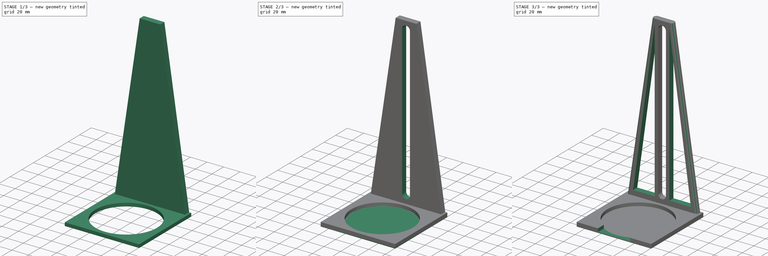
[diagram: build sequence overview — one tinted view per stage of 3, left to right]
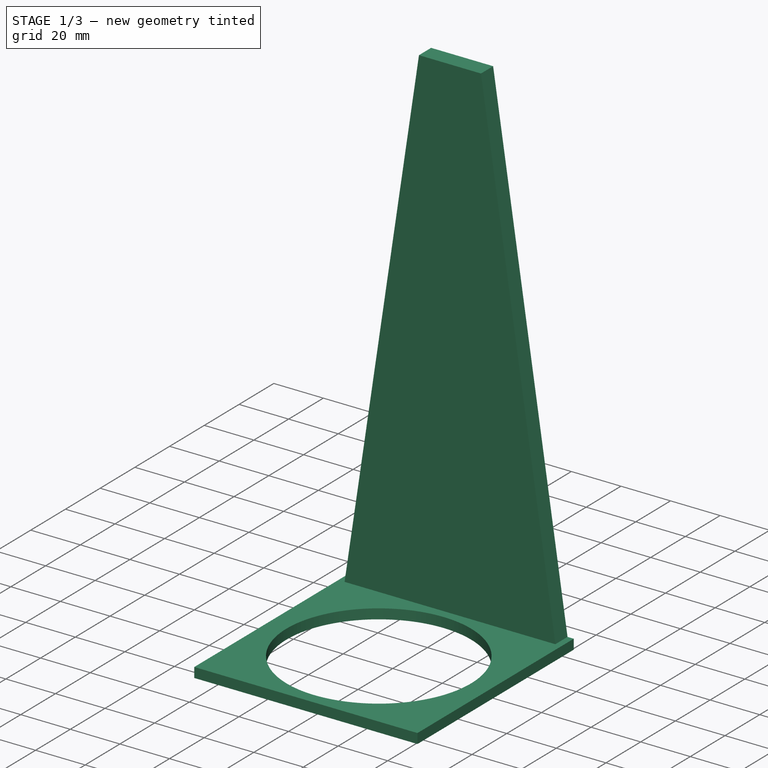
[diagram: stage 1 of 3 — iso view after this stage's code; geometry added in this stage tinted green]
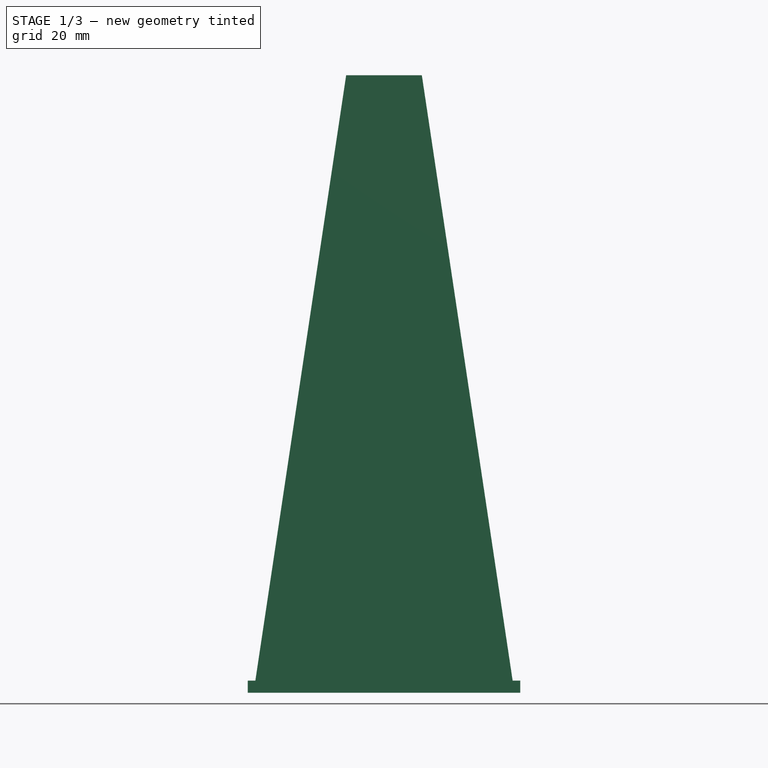
[diagram: stage 1 of 3 — front view after this stage's code; geometry added in this stage tinted green]
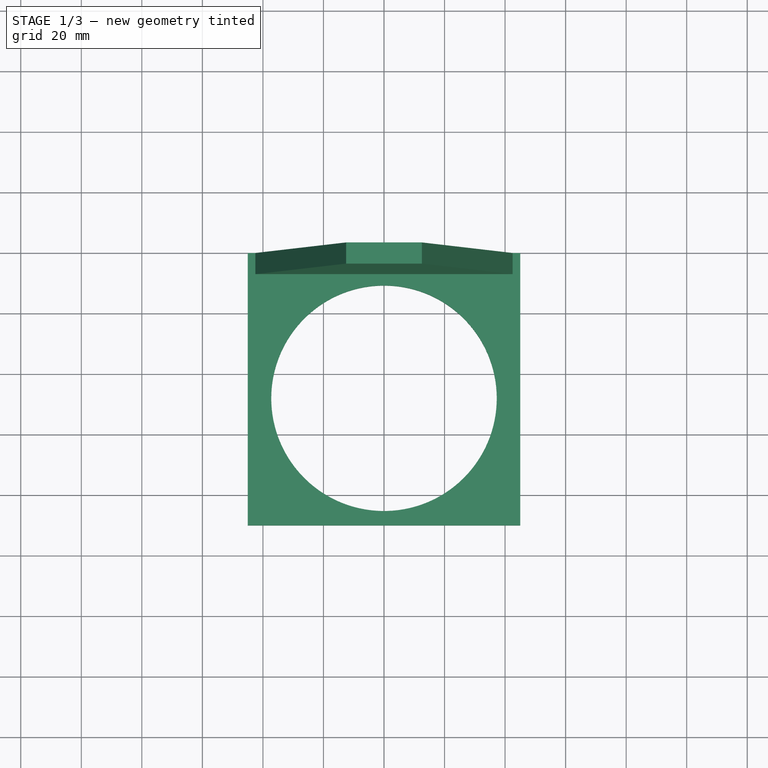
[diagram: stage 1 of 3 — top view after this stage's code; geometry added in this stage tinted green]
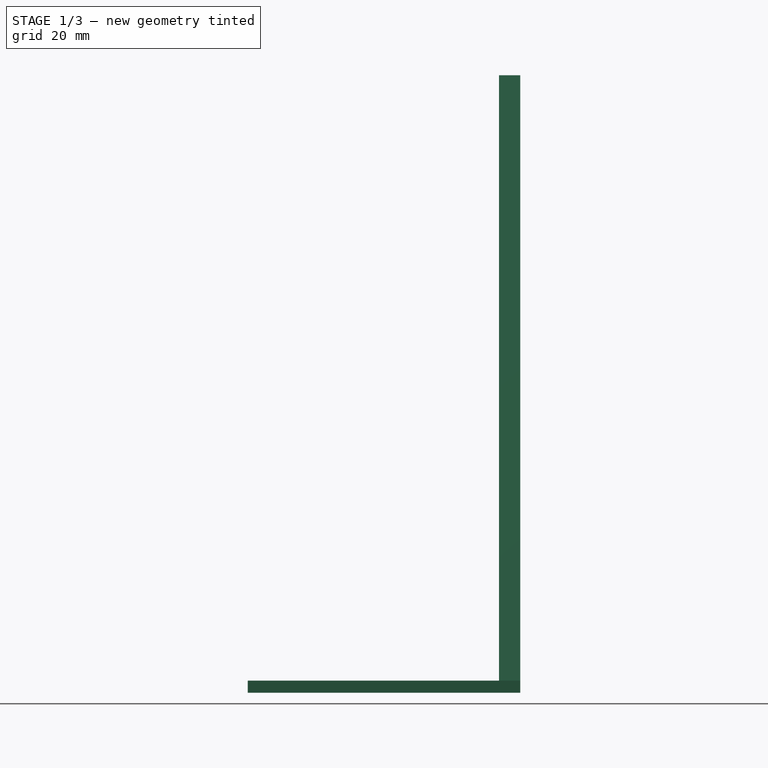
[diagram: stage 1 of 3 — right view after this stage's code; geometry added in this stage tinted green]
FCSTD DOCUMENT  (FreeCAD 0.21R33771 (Git))
Label: densimetro corpo
License: All rights reserved
LicenseURL: https://en.wikipedia.org/wiki/All_rights_reserved
objects: Sketcher::SketchObject×7, PartDesign::Pocket×4, PartDesign::Pad×3, PartDesign::Fillet×2, PartDesign::Body×1
note: 26 computed .brp shape members not serialized (recipe doc carries the construction recipe); baked Part::Feature solids carry a one-line shape summary decoded from their .brp

FEATURE [Sketcher::SketchObject] Sketch
  FullyConstrained = true
  MapMode = 5
  Placement = pos=(0,0,0) rot=(1,0,0;1.5708rad)
  Support = -> [XZ_Plane]
  sketch-geometry (8):
    g0: LineSegment StartX=-12.5 StartY=100 StartZ=0 EndX=-42.5 EndY=-100 EndZ=0
    g1: LineSegment StartX=-12.5 StartY=100 StartZ=0 EndX=12.5 EndY=100 EndZ=0
    g2: LineSegment StartX=12.5 StartY=100 StartZ=0 EndX=42.5 EndY=-100 EndZ=0
    g3: LineSegment StartX=-12.5 StartY=-100 StartZ=0 EndX=12.5 EndY=-100 EndZ=0
    g4: LineSegment StartX=-12.5 StartY=100 StartZ=0 EndX=-12.5 EndY=-100 EndZ=0
    g5: LineSegment StartX=12.5 StartY=100 StartZ=0 EndX=12.5 EndY=-100 EndZ=0
    g6: LineSegment StartX=-42.5 StartY=-100 StartZ=0 EndX=-12.5 EndY=-100 EndZ=0
    g7: LineSegment StartX=12.5 StartY=-100 StartZ=0 EndX=42.5 EndY=-100 EndZ=0
  constraints (21):
    c: Horizontal(g1)
    c: Horizontal(g3)
    c: Vertical(g5)
    c: Vertical(g4)
    c: Coincident(g4,g1)
    c: Coincident(g5,g1)
    c: Coincident(g3,g4)
    c: Coincident(g5,g3)
    c: DistanceY(g5,g5) = 200
    c: Symmetric(g3,g1,g-1)
    c: Coincident(g0,g1)
    c: Coincident(g2,g1)
    c: DistanceX(g1,g1) = 25
    c: Horizontal(g6)
    c: Horizontal(g7)
    c: Coincident(g7,g3)
    c: Coincident(g7,g2)
    c: Coincident(g6,g0)
    c: Coincident(g6,g3)
    c: DistanceX(g6,g6) = 30
    c: Equal(g6,g7)
FEATURE [PartDesign::Pad] Pad
  Direction = (0,-1,2e-16)
  Length = 7
  Length2 = 10
  Placement = pos=(0,0,0) rot=(1,0,0;1.5708rad)
  Profile = -> Sketch
  ReferenceAxis = -> Sketch [N_Axis]
  Type = 0
FEATURE [Sketcher::SketchObject] Sketch001
  FullyConstrained = true
  MapMode = 5
  Placement = pos=(0,-2.22e-14,-100) rot=(1,0,0;3.14159rad)
  Support = -> [Pad]
  sketch-geometry (4):
    g0: LineSegment StartX=-45 StartY=90 StartZ=0 EndX=45 EndY=90 EndZ=0
    g1: LineSegment StartX=45 StartY=90 StartZ=0 EndX=45 EndY=0 EndZ=0
    g2: LineSegment StartX=45 StartY=0 StartZ=0 EndX=-45 EndY=0 EndZ=0
    g3: LineSegment StartX=-45 StartY=0 StartZ=0 EndX=-45 EndY=90 EndZ=0
  constraints (11):
    c: Coincident(g0,g1)
    c: Coincident(g1,g2)
    c: Coincident(g2,g3)
    c: Coincident(g3,g0)
    c: Horizontal(g0)
    c: Horizontal(g2)
    c: Vertical(g1)
    c: Vertical(g3)
    c: Symmetric(g2,g1,g-1)
    c: DistanceX(g2,g2) = 90
    c: DistanceY(g1,g1) = 90
FEATURE [PartDesign::Pad] Pad001
  BaseFeature = -> Pad
  Direction = (0,-2e-16,-1)
  Length = 4
  Length2 = 10
  Placement = pos=(0,0,0) rot=(1,0,0;1.5708rad)
  Profile = -> Sketch001
  ReferenceAxis = -> Sketch001 [N_Axis]
  Type = 0
FEATURE [Sketcher::SketchObject] Sketch002
  FullyConstrained = true
  MapMode = 5
  Placement = pos=(0,-1.64e-14,-104) rot=(1,0,0;3.14159rad)
  Support = -> [Pad001]
  sketch-geometry (1):
    g0: Circle CenterX=0 CenterY=48 CenterZ=0 NormalX=0 NormalY=0 NormalZ=1 AngleXU=0 Radius=37.25
  constraints (3):
    c: PointOnObject(g0,g-2)
    c: Diameter(g0) = 74.5
    c: DistanceY(g-1,g0) = 48
FEATURE [PartDesign::Pocket] Pocket
  BaseFeature = -> Pad001
  Direction = (0,2e-16,1)
  Length = 5
  Length2 = 5
  Placement = pos=(0,0,0) rot=(1,0,0;1.5708rad)
  Profile = -> Sketch002
  ReferenceAxis = -> Sketch002 [N_Axis]
  Type = 0
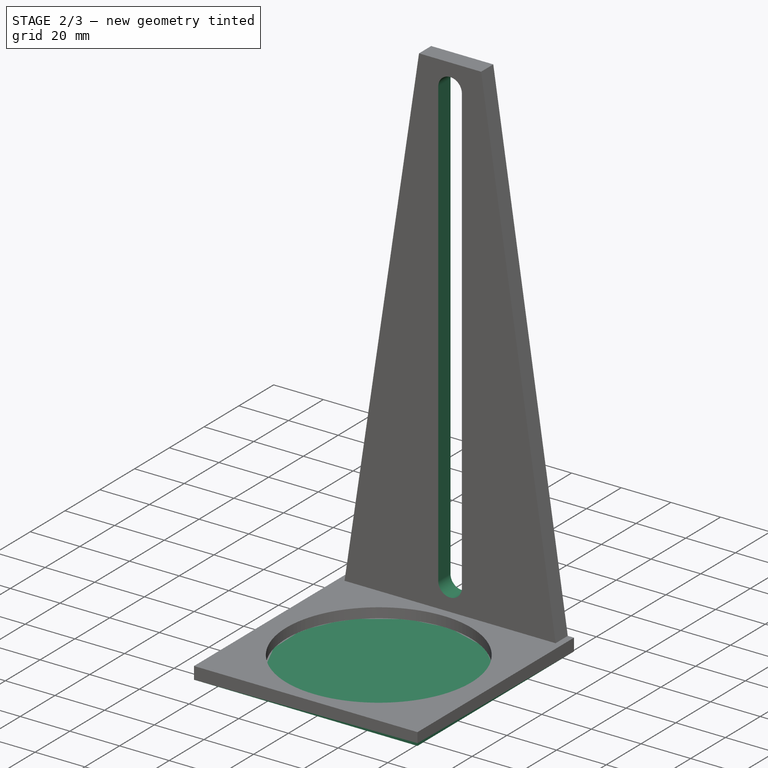
[diagram: stage 2 of 3 — iso view after this stage's code; geometry added in this stage tinted green]
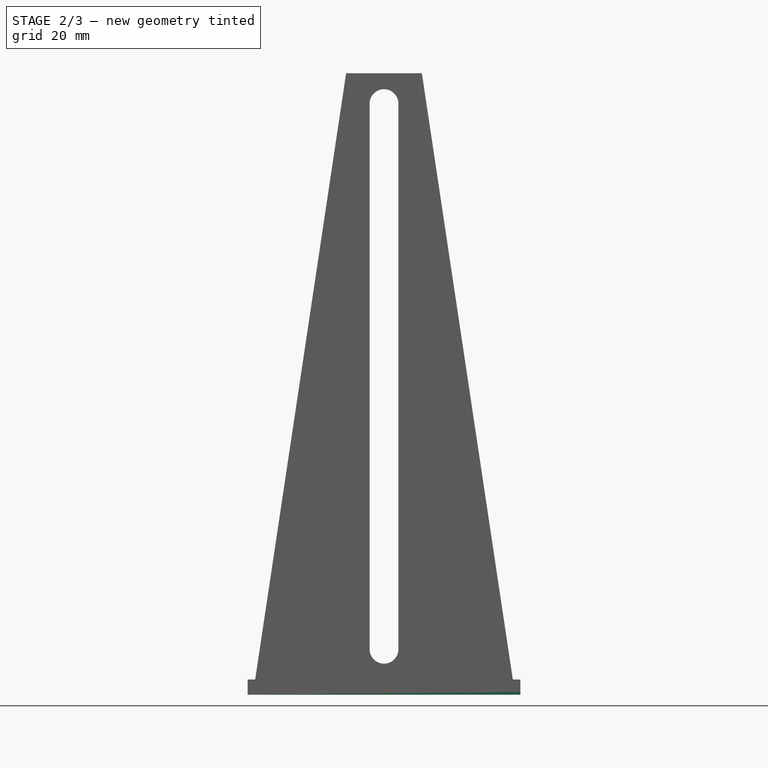
[diagram: stage 2 of 3 — front view after this stage's code; geometry added in this stage tinted green]
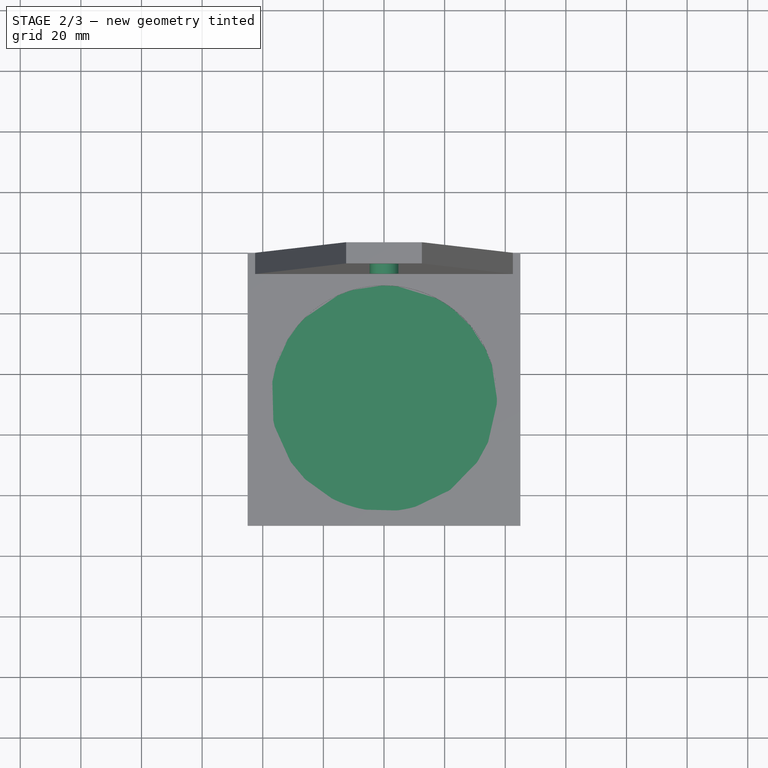
[diagram: stage 2 of 3 — top view after this stage's code; geometry added in this stage tinted green]
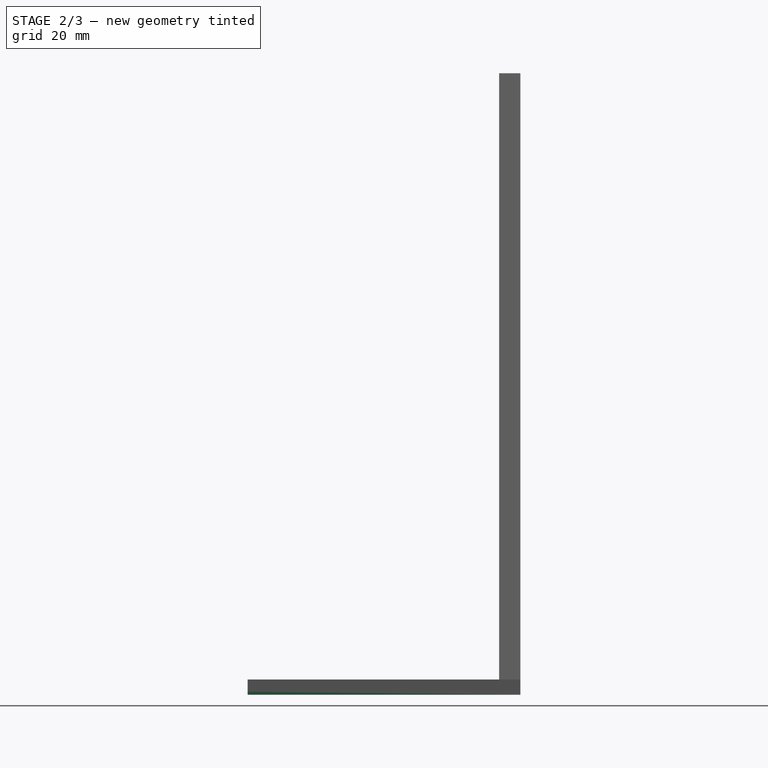
[diagram: stage 2 of 3 — right view after this stage's code; geometry added in this stage tinted green]
FEATURE [Sketcher::SketchObject] Sketch003
  FullyConstrained = true
  MapMode = 5
  Placement = pos=(0,-1.64e-14,-104) rot=(1,0,0;3.14159rad)
  Support = -> [Pocket]
  sketch-geometry (4):
    g0: LineSegment StartX=-45 StartY=90 StartZ=0 EndX=45 EndY=90 EndZ=0
    g1: LineSegment StartX=45 StartY=90 StartZ=0 EndX=45 EndY=0 EndZ=0
    g2: LineSegment StartX=45 StartY=-4e-16 StartZ=0 EndX=-45 EndY=-4e-16 EndZ=0
    g3: LineSegment StartX=-45 StartY=-4e-16 StartZ=0 EndX=-45 EndY=90 EndZ=0
  constraints (11):
    c: Coincident(g0,g1)
    c: Coincident(g1,g2)
    c: Coincident(g2,g3)
    c: Coincident(g3,g0)
    c: Horizontal(g0)
    c: Horizontal(g2)
    c: Vertical(g1)
    c: Vertical(g3)
    c: DistanceX(g0,g0) = 90
    c: DistanceY(g1,g1) = 90
    c: Symmetric(g2,g1,g-1)
FEATURE [PartDesign::Pad] Pad002
  BaseFeature = -> Pocket
  Direction = (0,-2e-16,-1)
  Length = 1
  Length2 = 10
  Placement = pos=(0,0,0) rot=(1,0,0;1.5708rad)
  Profile = -> Sketch003
  ReferenceAxis = -> Sketch003 [N_Axis]
  Type = 0
FEATURE [Sketcher::SketchObject] Sketch004
  FullyConstrained = true
  MapMode = 5
  Placement = pos=(0,-7,1.6e-15) rot=(1,0,0;1.5708rad)
  Support = -> [Pad002]
  sketch-geometry (4):
    g0: ArcOfCircle CenterX=4e-16 CenterY=90 CenterZ=0 NormalX=0 NormalY=0 NormalZ=1 AngleXU=0 Radius=4.75 StartAngle=5e-16 EndAngle=3.14159
    g1: ArcOfCircle CenterX=-4e-16 CenterY=-90 CenterZ=0 NormalX=0 NormalY=0 NormalZ=1 AngleXU=0 Radius=4.75 StartAngle=3.14159 EndAngle=6.28319
    g2: LineSegment StartX=-4.75 StartY=90 StartZ=0 EndX=-4.75 EndY=-90 EndZ=0
    g3: LineSegment StartX=4.75 StartY=-90 StartZ=0 EndX=4.75 EndY=90 EndZ=0
  constraints (9):
    c: Tangent(g0,g2) = -1.5708
    c: Tangent(g2,g1) = -1.5708
    c: Tangent(g1,g3) = -1.5708
    c: Tangent(g3,g0) = -1.5708
    c: Equal(g0,g1)
    c: Vertical(g3)
    c: Symmetric(g0,g1,g-1)
    c: Diameter(g0) = 9.5
    c: DistanceY(g3,g3) = 180
FEATURE [PartDesign::Pocket] Pocket001
  BaseFeature = -> Pad002
  Direction = (0,1,-2e-16)
  Length = 5
  Length2 = 5
  Placement = pos=(0,0,0) rot=(1,0,0;1.5708rad)
  Profile = -> Sketch004
  ReferenceAxis = -> Sketch004 [N_Axis]
  Type = 1
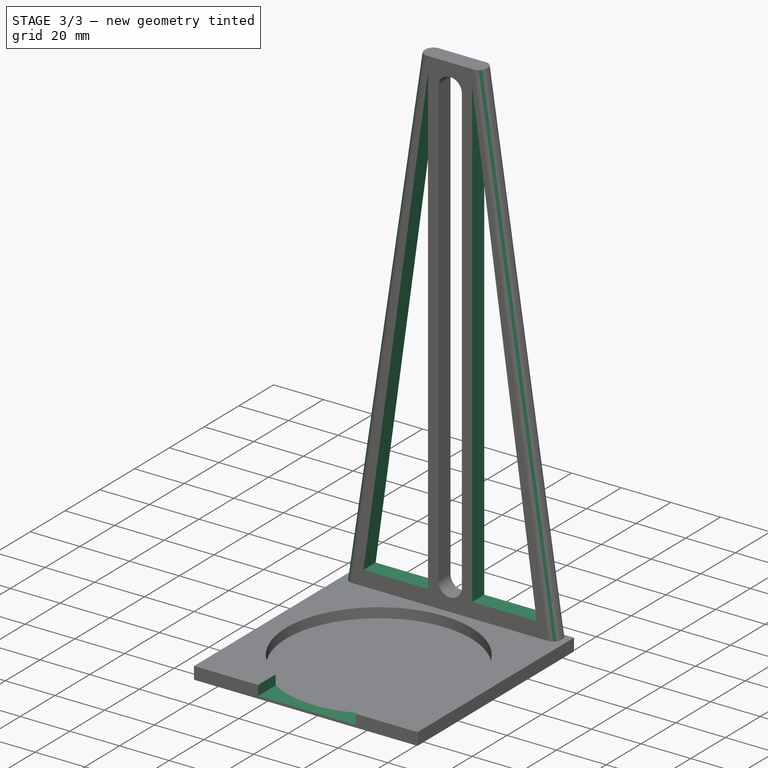
[diagram: stage 3 of 3 — iso view after this stage's code; geometry added in this stage tinted green]
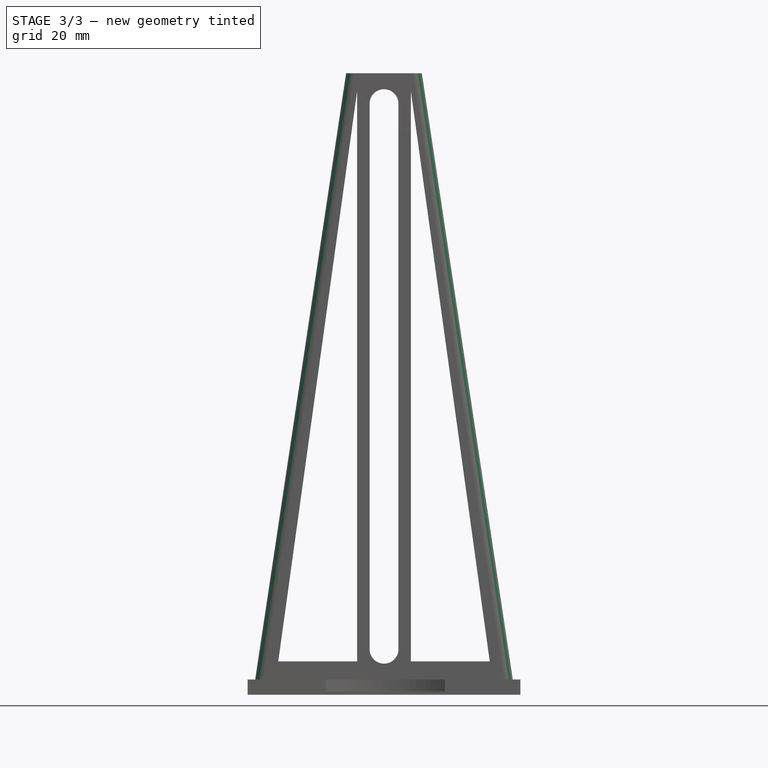
[diagram: stage 3 of 3 — front view after this stage's code; geometry added in this stage tinted green]
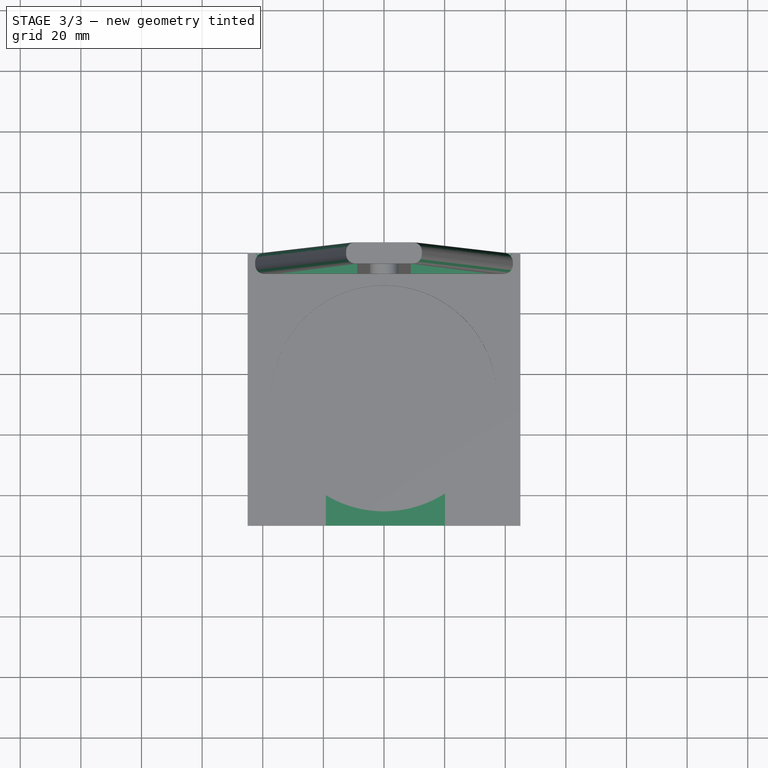
[diagram: stage 3 of 3 — top view after this stage's code; geometry added in this stage tinted green]
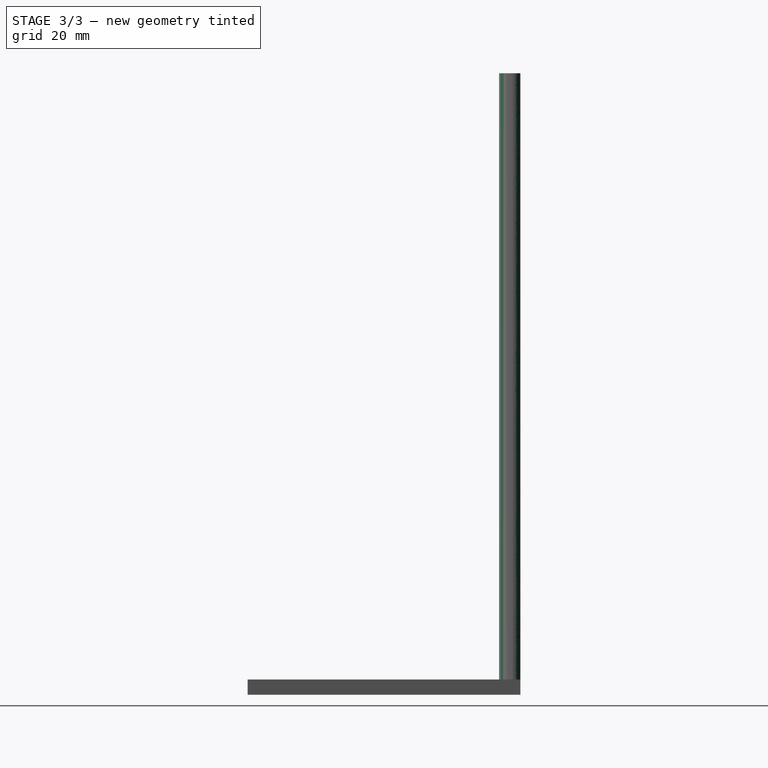
[diagram: stage 3 of 3 — right view after this stage's code; geometry added in this stage tinted green]
FEATURE [Sketcher::SketchObject] Sketch005
  FullyConstrained = true
  MapMode = 5
  Placement = pos=(0,-7,1.6e-15) rot=(1,0,0;1.5708rad)
  Support = -> [Pocket001]
  sketch-geometry (8):
    g0: LineSegment StartX=-34.88 StartY=-94 StartZ=0 EndX=-8.88 EndY=-94 EndZ=0
    g1: LineSegment StartX=-8.88 StartY=-94 StartZ=0 EndX=-8.88 EndY=94 EndZ=0
    g2: LineSegment StartX=-8.88 StartY=94 StartZ=0 EndX=-34.88 EndY=-94 EndZ=0
    g3: Circle CenterX=-21.88 CenterY=0 CenterZ=0 NormalX=0 NormalY=0 NormalZ=1 AngleXU=0 Radius=94.8947
    g4: LineSegment StartX=34.88 StartY=-94 StartZ=0 EndX=8.88 EndY=94 EndZ=0
    g5: LineSegment StartX=8.88 StartY=94 StartZ=0 EndX=8.88 EndY=-94 EndZ=0
    g6: LineSegment StartX=8.88 StartY=-94 StartZ=0 EndX=34.88 EndY=-94 EndZ=0
    g7: Circle CenterX=21.88 CenterY=0 CenterZ=0 NormalX=0 NormalY=0 NormalZ=1 AngleXU=0 Radius=94.8947
  constraints (24):
    c: Coincident(g0,g1)
    c: Coincident(g1,g2)
    c: Coincident(g2,g0)
    c: PointOnObject(g0,g3)
    c: PointOnObject(g1,g3)
    c: PointOnObject(g2,g3)
    c: Horizontal(g0)
    c: Vertical(g1)
    c: DistanceY(g1,g1) = 188
    c: DistanceX(g0,g0) = 26
    c: PointOnObject(g3,g-1)
    c: DistanceX(g3,g-1) = 21.88
    c: Coincident(g4,g5)
    c: Coincident(g5,g6)
    c: Coincident(g6,g4)
    c: PointOnObject(g4,g7)
    c: PointOnObject(g5,g7)
    c: PointOnObject(g6,g7)
    c: Horizontal(g6)
    c: DistanceX(g6,g6) = 26
    c: Vertical(g5)
    c: PointOnObject(g7,g-1)
    c: DistanceX(g-1,g7) = 21.88
    c: DistanceY(g5,g5) = 188
FEATURE [PartDesign::Pocket] Pocket002
  BaseFeature = -> Pocket001
  Direction = (0,1,-2e-16)
  Length = 5
  Length2 = 5
  Placement = pos=(0,0,0) rot=(1,0,0;1.5708rad)
  Profile = -> Sketch005
  ReferenceAxis = -> Sketch005 [N_Axis]
  Type = 1
FEATURE [PartDesign::Fillet] Fillet
  Base = -> Pocket002 [Edge32,Edge31,Edge34,Edge46]
  BaseFeature = -> Pocket002
  Placement = pos=(0,0,0) rot=(1,0,0;1.5708rad)
  Radius = 3
  SupportTransform = false
  UseAllEdges = false
FEATURE [Sketcher::SketchObject] Sketch006
  FullyConstrained = false
  MapMode = 5
  Placement = pos=(0,-1.58e-14,-100) rot=(0,0,1;3.14159rad)
  Support = -> [Fillet]
  sketch-geometry (4):
    g0: LineSegment StartX=-20.1177 StartY=90 StartZ=0 EndX=19.1828 EndY=90 EndZ=0
    g1: LineSegment StartX=19.1828 StartY=90 StartZ=0 EndX=19.1828 EndY=78.8454 EndZ=0
    g2: LineSegment StartX=19.1828 StartY=78.8454 StartZ=0 EndX=-20.1177 EndY=78.8454 EndZ=0
    g3: LineSegment StartX=-20.1177 StartY=78.8454 StartZ=0 EndX=-20.1177 EndY=90 EndZ=0
  constraints (9):
    c: Coincident(g0,g1)
    c: Coincident(g1,g2)
    c: Coincident(g2,g3)
    c: Coincident(g3,g0)
    c: Horizontal(g0)
    c: Horizontal(g2)
    c: Vertical(g1)
    c: Vertical(g3)
    c: DistanceY(g-1,g0) = 90
FEATURE [PartDesign::Pocket] Pocket003
  BaseFeature = -> Fillet
  Direction = (0,-2e-16,-1)
  Length = 4
  Length2 = 5
  Placement = pos=(0,0,0) rot=(1,0,0;1.5708rad)
  Profile = -> Sketch006
  ReferenceAxis = -> Sketch006 [N_Axis]
  Type = 0
FEATURE [PartDesign::Fillet] Fillet001
  Base = -> Pocket003 [Edge3]
  BaseFeature = -> Pocket003
  Placement = pos=(0,0,0) rot=(1,0,0;1.5708rad)
  Radius = 1
  SupportTransform = false
  UseAllEdges = false
FEATURE [PartDesign::Body] Body
  Group = -> [Sketch,Pad,Sketch001,Pad001,Sketch002,Pocket,Sketch003,Pad002,Sketch004,Pocket001,Sketch005,Pocket002,Fillet,Sketch006,Pocket003,Fillet001]
  Origin = -> Origin
  Tip = -> Fillet001
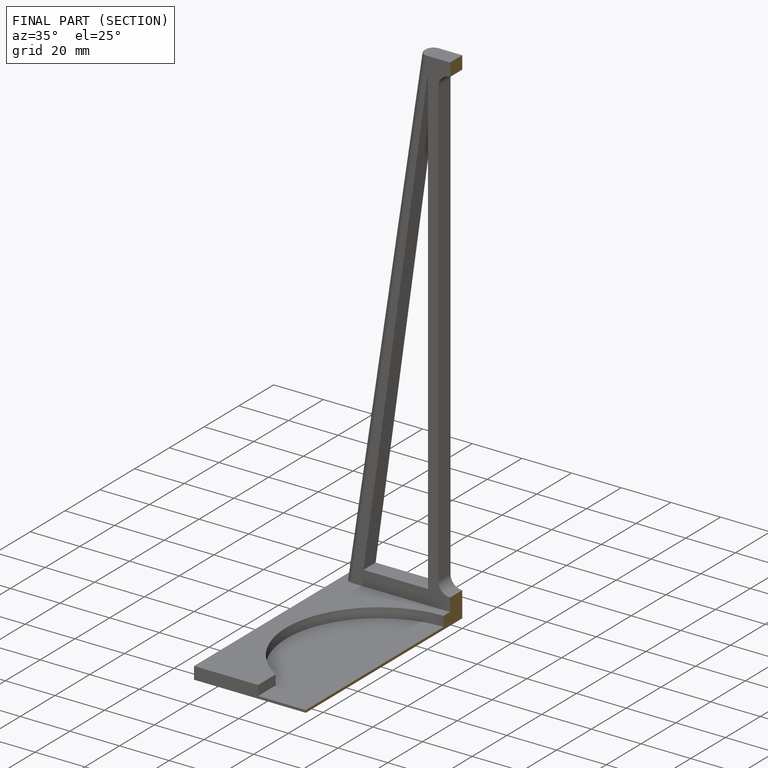
[diagram: finished part — half-section view (interior)]
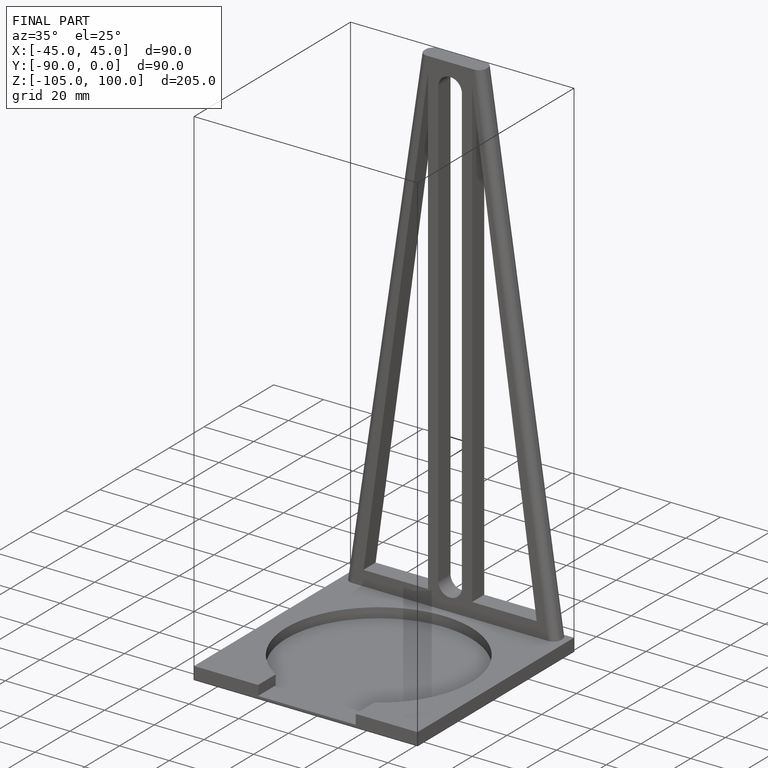
[diagram: finished part — iso view with bounding-box wireframe]
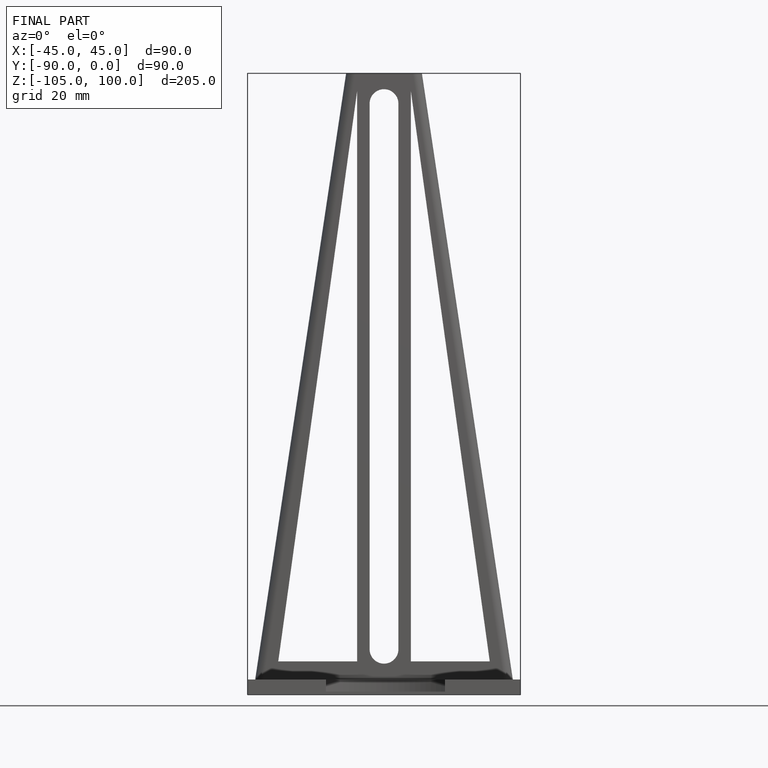
[diagram: finished part — front view with bounding-box wireframe]
